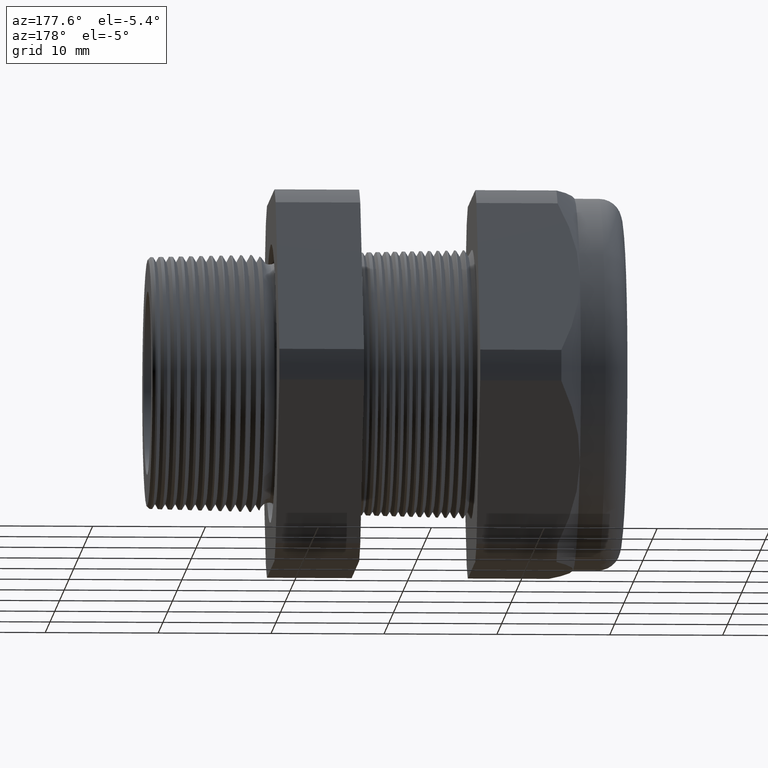
[diagram: clean part render]
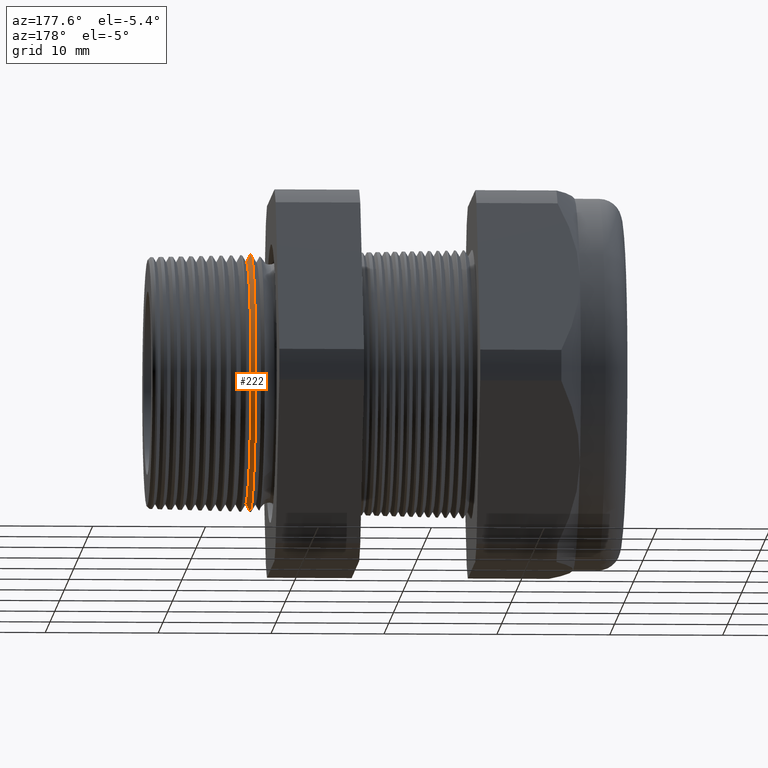
[diagram: same view with one face highlighted and labeled with its STEP entity id]
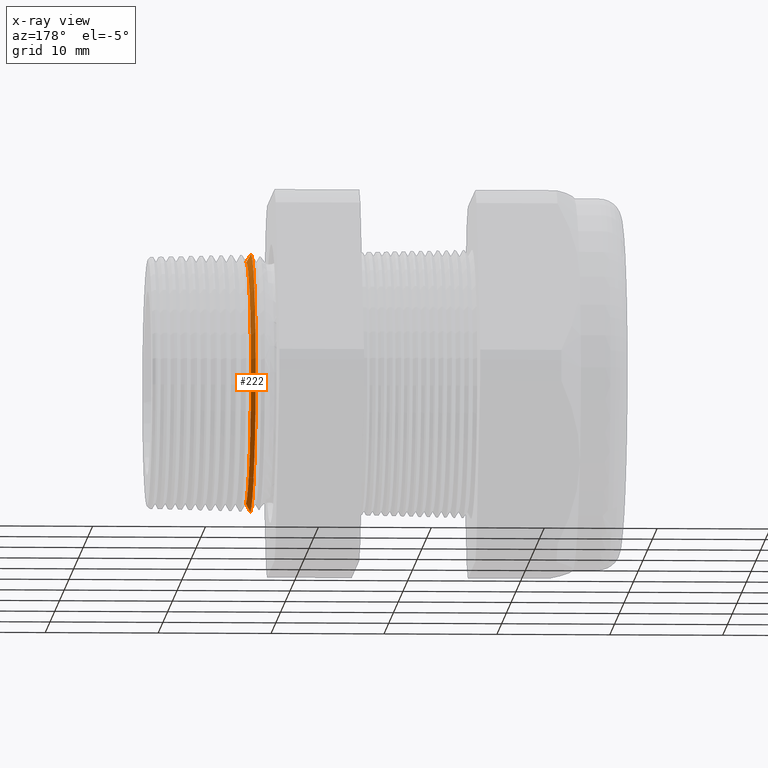
[diagram: x-ray of the same camera — body ghosted, the highlighted face saturated]
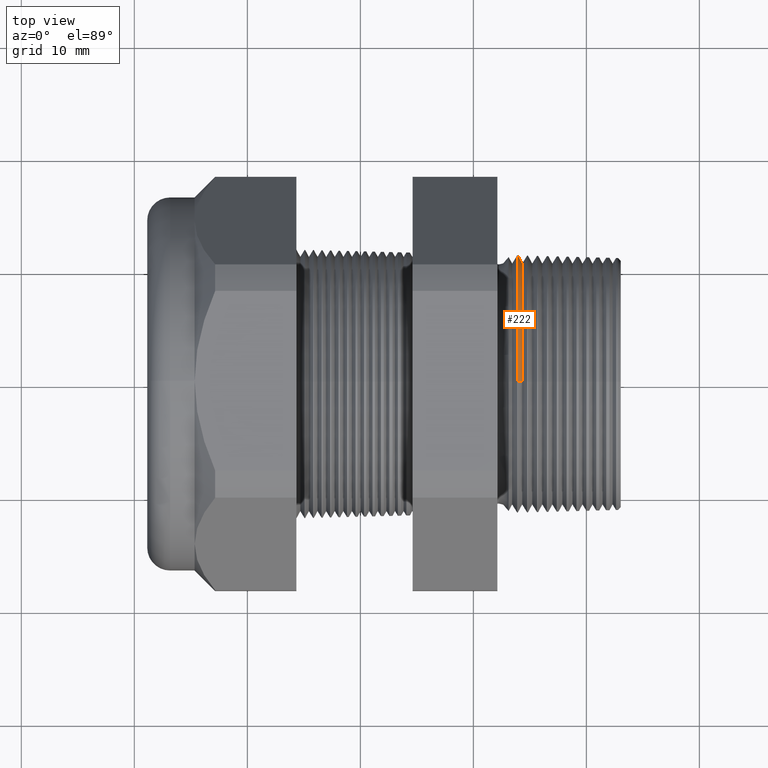
[diagram: same view with one face highlighted and labeled with its STEP entity id]
A machine part, auxiliary view. The second image highlights one B-rep face of the part: STEP entity #222.
The next image is the same camera in x-ray: the body ghosted, the highlighted face saturated — about 0% of this face is hidden behind the body in this view.
A second angle (top view) of the same face is appended — the face is thin or edge-on in the first view.
In plain terms, the highlighted conical surface has half-angle 61.5 deg.
Its self-contained STEP definition (entity closure, byte-faithful):
#68 = ORIENTED_EDGE ( 'NONE', *, *, #300, .T. ) ;
#222 = ADVANCED_FACE ( 'NONE', ( #1934 ), #1933, .T. ) ;
#223 = EDGE_LOOP ( 'NONE', ( #225, #228, #68, #335 ) ) ;
#225 = ORIENTED_EDGE ( 'NONE', *, *, #5636, .F. ) ;
#228 = ORIENTED_EDGE ( 'NONE', *, *, #230, .T. ) ;
#230 = EDGE_CURVE ( 'NONE', #5630, #231, #1926, .T. ) ;
#231 = VERTEX_POINT ( 'NONE', #1918 ) ;
#261 = EDGE_CURVE ( 'NONE', #5629, #301, #1999, .T. ) ;
#300 = EDGE_CURVE ( 'NONE', #231, #301, #2067, .T. ) ;
#301 = VERTEX_POINT ( 'NONE', #2062 ) ;
#335 = ORIENTED_EDGE ( 'NONE', *, *, #261, .F. ) ;
#1918 = CARTESIAN_POINT ( 'NONE',  ( -0.2389904000387094700, 5.508797677949439700E-017, -0.4498021555519763900 ) ) ;
#1919 = DIRECTION ( 'NONE',  ( -0.4771587602596179000, 1.076240564057388100E-016, -0.8788171126619600500 ) ) ;
#1920 = VECTOR ( 'NONE', #1919, 39.37007874015748900 ) ;
#1921 = CARTESIAN_POINT ( 'NONE',  ( -0.2399999999999999600, 5.531259417600165900E-017, -0.4516616073672216100 ) ) ;
#1926 = LINE ( 'NONE', #1921, #1920 ) ;
#1928 = DIRECTION ( 'NONE',  ( 0.0000000000000000000, 0.0000000000000000000, 1.000000000000000000 ) ) ;
#1929 = DIRECTION ( 'NONE',  ( -1.000000000000000000, 0.0000000000000000000, 0.0000000000000000000 ) ) ;
#1930 = CARTESIAN_POINT ( 'NONE',  ( -0.2399999999999999600, 0.0000000000000000000, 0.0000000000000000000 ) ) ;
#1931 = AXIS2_PLACEMENT_3D ( 'NONE', #1930, #1929, #1928 ) ;
#1933 = CONICAL_SURFACE ( 'NONE', #1931, 0.4516616073672216100, 1.073377489976501800 ) ;
#1934 = FACE_OUTER_BOUND ( 'NONE', #223, .T. ) ;
#1996 = DIRECTION ( 'NONE',  ( -0.4771587602596179000, 0.0000000000000000000, 0.8788171126619600500 ) ) ;
#1997 = VECTOR ( 'NONE', #1996, 39.37007874015748900 ) ;
#1998 = CARTESIAN_POINT ( 'NONE',  ( -0.2399999999999999600, 0.0000000000000000000, 0.4516616073672216100 ) ) ;
#1999 = LINE ( 'NONE', #1998, #1997 ) ;
#2062 = CARTESIAN_POINT ( 'NONE',  ( -0.2389904000387094700, 0.0000000000000000000, 0.4498021555519763900 ) ) ;
#2063 = DIRECTION ( 'NONE',  ( 0.0000000000000000000, 0.0000000000000000000, 1.000000000000000000 ) ) ;
#2064 = DIRECTION ( 'NONE',  ( 1.000000000000000000, 0.0000000000000000000, 0.0000000000000000000 ) ) ;
#2065 = CARTESIAN_POINT ( 'NONE',  ( -0.2389904000387094700, 0.0000000000000000000, 0.0000000000000000000 ) ) ;
#2066 = AXIS2_PLACEMENT_3D ( 'NONE', #2065, #2064, #2063 ) ;
#2067 = CIRCLE ( 'NONE', #2066, 0.4498021555519763900 ) ;
#5139 = DIRECTION ( 'NONE',  ( 0.0000000000000000000, 0.0000000000000000000, -1.000000000000000000 ) ) ;
#5140 = DIRECTION ( 'NONE',  ( 1.000000000000000000, 0.0000000000000000000, 0.0000000000000000000 ) ) ;
#5141 = CARTESIAN_POINT ( 'NONE',  ( -0.2234707356790752200, 0.0000000000000000000, 0.0000000000000000000 ) ) ;
#5142 = AXIS2_PLACEMENT_3D ( 'NONE', #5141, #5140, #5139 ) ;
#5147 = CIRCLE ( 'NONE', #5142, 0.4212184895733915900 ) ;
#5150 = CARTESIAN_POINT ( 'NONE',  ( -0.2234707356790752200, 5.333463225220223000E-017, -0.4212184895733915900 ) ) ;
#5151 = CARTESIAN_POINT ( 'NONE',  ( -0.2234707356790752200, 0.0000000000000000000, 0.4212184895733915900 ) ) ;
#5629 = VERTEX_POINT ( 'NONE', #5151 ) ;
#5630 = VERTEX_POINT ( 'NONE', #5150 ) ;
#5636 = EDGE_CURVE ( 'NONE', #5630, #5629, #5147, .T. ) ;